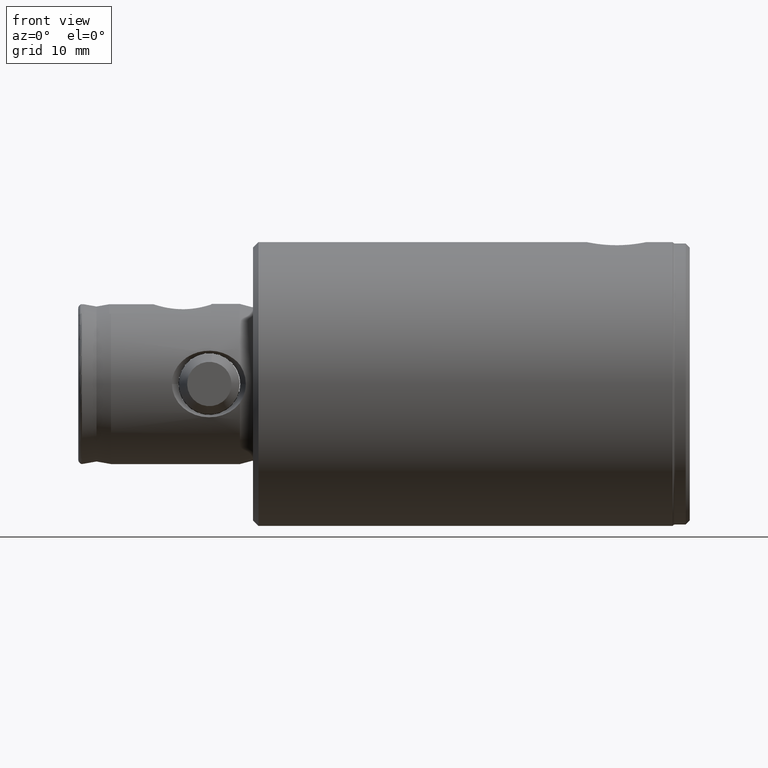
[diagram: clean part render]
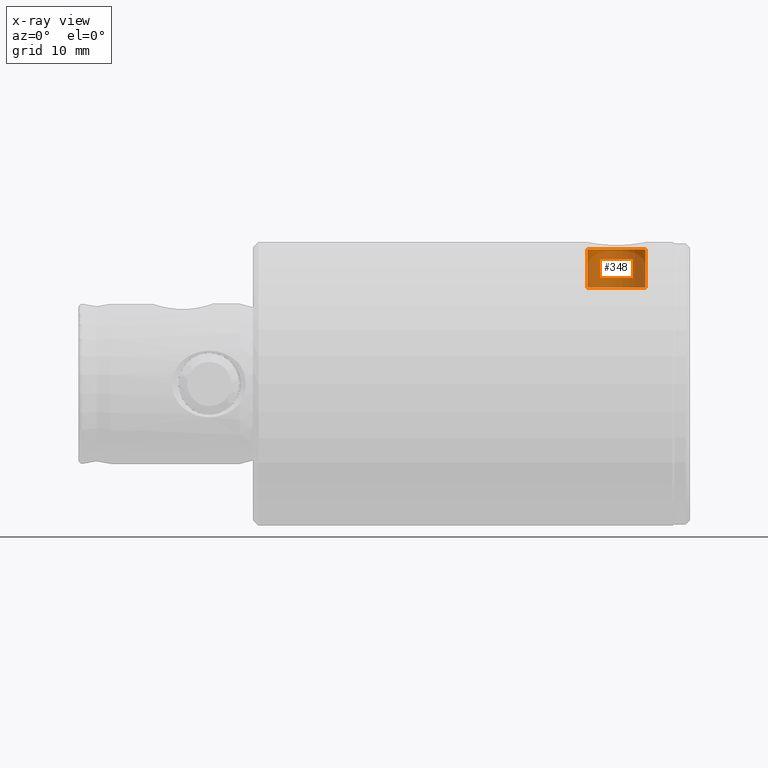
[diagram: x-ray — body ghosted, one internal face saturated and labeled with its STEP entity id]
A machine part, front view, then the same camera in x-ray: the body is ghosted and one INTERNAL B-rep face — a face not visible from any outside direction — is saturated and labeled: STEP entity #348.
In plain terms, the highlighted cylindrical surface (edge-blend (fillet) strip) has radius 4 mm, axis along (0, 0, 1).
Its self-contained STEP definition (entity closure, byte-faithful):
#4 = CARTESIAN_POINT ( 'NONE',  ( 11.00000000000000000, 0.0000000000000000000, 0.0000000000000000000 ) ) ;
#19 = DIRECTION ( 'NONE',  ( -1.000000000000000000, 0.0000000000000000000, 0.0000000000000000000 ) ) ;
#33 = DIRECTION ( 'NONE',  ( 0.0000000000000000000, -1.387778780781447500E-017, 1.000000000000000000 ) ) ;
#127 = CARTESIAN_POINT ( 'NONE',  ( 5.499999999999923600, 5.453698708901993100E-016, -4.000000000000000000 ) ) ;
#342 = CARTESIAN_POINT ( 'NONE',  ( 5.499999999999923600, 0.0000000000000000000, 0.0000000000000000000 ) ) ;
#348 = ADVANCED_FACE ( 'NONE', ( #463 ), #400, .T. ) ;
#349 = DIRECTION ( 'NONE',  ( -1.000000000000000000, -0.0000000000000000000, -0.0000000000000000000 ) ) ;
#400 = CYLINDRICAL_SURFACE ( 'NONE', #3080, 3.999999999999994700 ) ;
#463 = FACE_OUTER_BOUND ( 'NONE', #3589, .T. ) ;
#500 = CARTESIAN_POINT ( 'NONE',  ( 5.499999999999923600, -5.551115123125790100E-017, 4.000000000000000000 ) ) ;
#746 = VECTOR ( 'NONE', #4080, 1000.000000000000000 ) ;
#826 = EDGE_CURVE ( 'NONE', #3225, #3230, #3676, .T. ) ;
#970 = VECTOR ( 'NONE', #3240, 1000.000000000000000 ) ;
#1082 = LINE ( 'NONE', #4329, #970 ) ;
#1143 = AXIS2_PLACEMENT_3D ( 'NONE', #3359, #1221, #3732 ) ;
#1187 = CARTESIAN_POINT ( 'NONE',  ( 11.00000000000000000, -5.551115123125782700E-017, 3.999999999999994700 ) ) ;
#1221 = DIRECTION ( 'NONE',  ( 1.000000000000000000, 0.0000000000000000000, 0.0000000000000000000 ) ) ;
#1558 = EDGE_CURVE ( 'NONE', #3230, #2828, #1082, .T. ) ;
#1784 = LINE ( 'NONE', #1187, #746 ) ;
#1993 = CARTESIAN_POINT ( 'NONE',  ( 0.1999999999999987900, 5.453698708901993100E-016, -4.000000000000000000 ) ) ;
#2105 = EDGE_CURVE ( 'NONE', #2828, #2935, #2867, .T. ) ;
#2658 = ORIENTED_EDGE ( 'NONE', *, *, #2105, .T. ) ;
#2735 = EDGE_CURVE ( 'NONE', #3225, #2935, #1784, .T. ) ;
#2828 = VERTEX_POINT ( 'NONE', #1993 ) ;
#2867 = CIRCLE ( 'NONE', #1143, 3.999999999999994700 ) ;
#2935 = VERTEX_POINT ( 'NONE', #3437 ) ;
#3080 = AXIS2_PLACEMENT_3D ( 'NONE', #4, #19, #33 ) ;
#3159 = ORIENTED_EDGE ( 'NONE', *, *, #1558, .T. ) ;
#3225 = VERTEX_POINT ( 'NONE', #500 ) ;
#3230 = VERTEX_POINT ( 'NONE', #127 ) ;
#3240 = DIRECTION ( 'NONE',  ( -1.000000000000000000, 0.0000000000000000000, 0.0000000000000000000 ) ) ;
#3320 = ORIENTED_EDGE ( 'NONE', *, *, #2735, .F. ) ;
#3359 = CARTESIAN_POINT ( 'NONE',  ( 0.1999999999999987900, 0.0000000000000000000, 0.0000000000000000000 ) ) ;
#3437 = CARTESIAN_POINT ( 'NONE',  ( 0.1999999999999987900, -5.551115123125790100E-017, 4.000000000000000000 ) ) ;
#3589 = EDGE_LOOP ( 'NONE', ( #3895, #3159, #2658, #3320 ) ) ;
#3676 = CIRCLE ( 'NONE', #3930, 3.999999999999994700 ) ;
#3732 = DIRECTION ( 'NONE',  ( 0.0000000000000000000, 1.387778780781447500E-017, -1.000000000000000000 ) ) ;
#3886 = DIRECTION ( 'NONE',  ( 0.0000000000000000000, 1.387778780781447500E-017, -1.000000000000000000 ) ) ;
#3895 = ORIENTED_EDGE ( 'NONE', *, *, #826, .T. ) ;
#3930 = AXIS2_PLACEMENT_3D ( 'NONE', #342, #349, #3886 ) ;
#4080 = DIRECTION ( 'NONE',  ( -1.000000000000000000, 0.0000000000000000000, 0.0000000000000000000 ) ) ;
#4329 = CARTESIAN_POINT ( 'NONE',  ( 11.00000000000000000, 5.453698708901985200E-016, -3.999999999999994700 ) ) ;